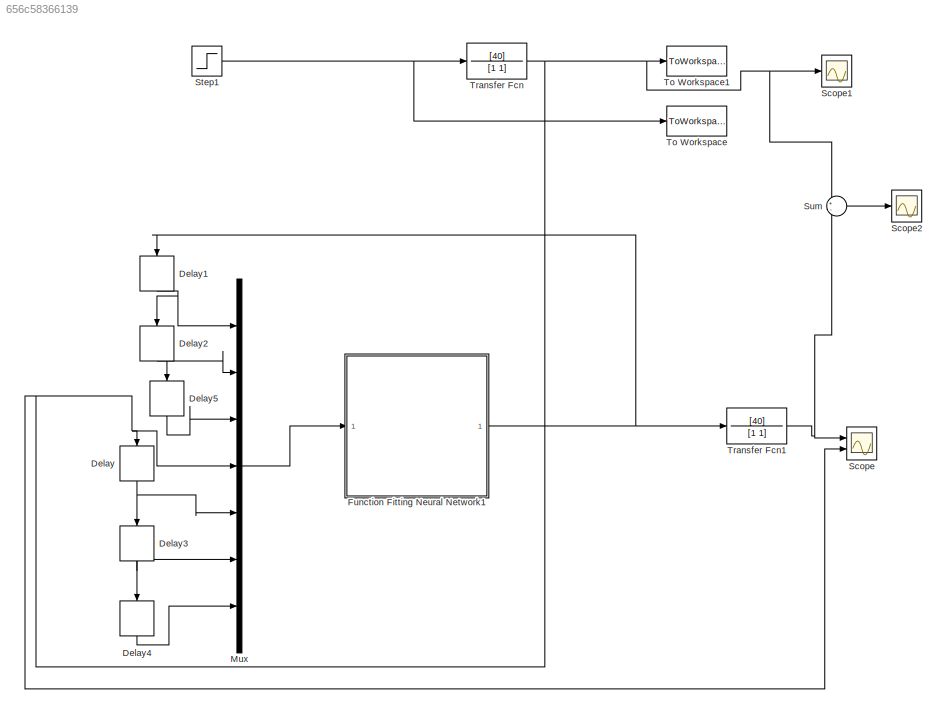
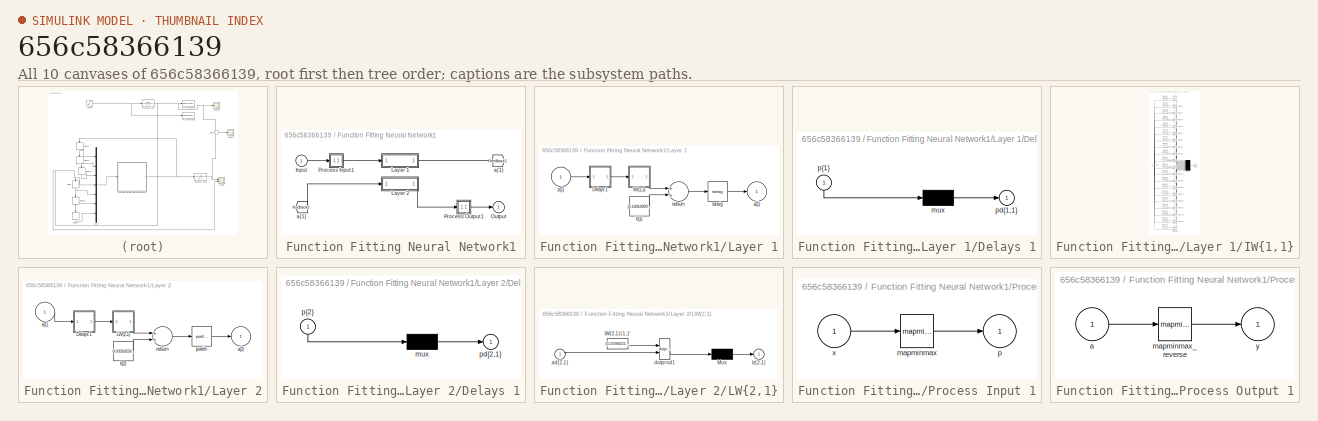
[diagram: thumbnail index - all 10 canvases of the model, root first then tree order]
MODEL slx_656c58366139
KIND model
CONFIG AbsTol = auto
CONFIG EnableMultiTasking = off
CONFIG FixedStep = 0.05
CONFIG MaxStep = auto
CONFIG MinStep = auto
CONFIG RelTol = 1e-3
CONFIG SampleTimeConstraint = Unconstrained
CONFIG Solver = FixedStepAuto
CONFIG SolverName = FixedStepAuto
CONFIG StartTime = 0.0
CONFIG StopTime = 100.0
BLOCK [Delay] Delay
  DelayLength = 1
  InputPortMap = u0
  Ports = [1, 1]
BLOCK [Delay] Delay1
  DelayLength = 1
  InputPortMap = u0
  Ports = [1, 1]
BLOCK [Delay] Delay2
  DelayLength = 1
  InputPortMap = u0
  Ports = [1, 1]
BLOCK [Delay] Delay3
  DelayLength = 1
  InputPortMap = u0
  Ports = [1, 1]
BLOCK [Delay] Delay4
  DelayLength = 1
  InputPortMap = u0
  Ports = [1, 1]
BLOCK [Delay] Delay5
  DelayLength = 1
  InputPortMap = u0
  Ports = [1, 1]
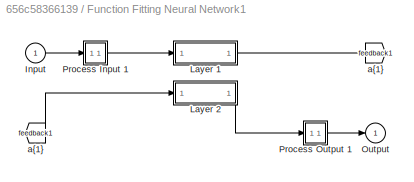
BLOCK [SubSystem] Function Fitting Neural Network1
  Ports = [1, 1]
  RequestExecContextInheritance = off
BLOCK [From] Function Fitting Neural Network1/ a{1} 
  GotoTag = feedback1
BLOCK [Inport] Function Fitting Neural Network1/Input
  IconDisplay = Port number
  PortDimensions = 7
BLOCK [SubSystem] Function Fitting Neural Network1/Layer 1
  Ports = [1, 1]
  RequestExecContextInheritance = off
BLOCK [SubSystem] Function Fitting Neural Network1/Layer 1/Delays 1
  Ports = [1, 1]
  RequestExecContextInheritance = off
BLOCK [Mux] Function Fitting Neural Network1/Layer 1/Delays 1/mux
  Inputs = 1
  Ports = [1, 1]
BLOCK [Outport] Function Fitting Neural Network1/Layer 1/Delays 1/pd{1,1}
  IconDisplay = Port number
BLOCK [Inport] Function Fitting Neural Network1/Layer 1/Delays 1/p{1}
  IconDisplay = Port number
  PortDimensions = 7
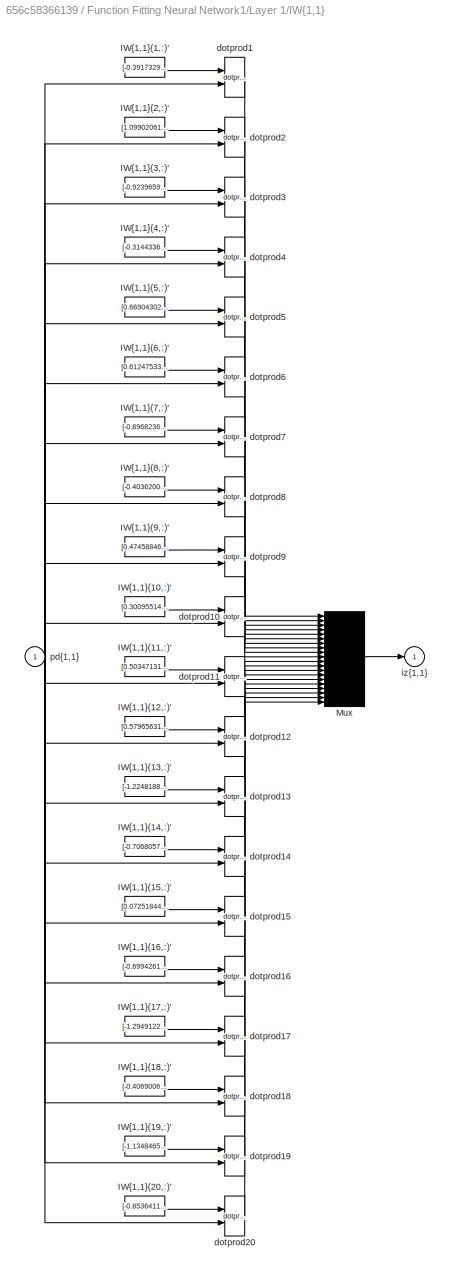
BLOCK [SubSystem] Function Fitting Neural Network1/Layer 1/IW{1,1}
  Ports = [1, 1]
  RequestExecContextInheritance = off
BLOCK [Constant] Function Fitting Neural Network1/Layer 1/IW{1,1}/IW{1,1}(1,:)'
  Value = [-0.39173291493806583485337569072726182639598846435546875;-0.459779489292541587719398421540972776710987091064453125;-0.72047176774533661092192460273508913815021514892578125;-1.3522061706078762899352341264602728188037872314453125;-0.542329398386067307313851415528915822505950927734375;-0.86022536452478981505720412314985878765583038330078125;0.9540176860017195448193660922697745263576507568359375]
BLOCK [Constant] Function Fitting Neural Network1/Layer 1/IW{1,1}/IW{1,1}(10,:)'
  Value = [0.300955147355070895542894504615105688571929931640625;-1.41501172176226308607738246791996061801910400390625;-0.94045138296618013828975790602271445095539093017578125;-1.0536496551067935367740346919163130223751068115234375;0.617778062650217396623020249535329639911651611328125;-0.15857531906934652088381199064315296709537506103515625;0.305412486953266448796995291559142060577869415283203125]
BLOCK [Constant] Function Fitting Neural Network1/Layer 1/IW{1,1}/IW{1,1}(11,:)'
  Value = [0.50347131034091763268634167616255581378936767578125;0.45851657351247376848135672844364307820796966552734375;-0.778453320363615031141080180532298982143402099609375;-0.6328181574194993164184097622637636959552764892578125;-0.94989003705725083559485710793524049222469329833984375;-1.026655688238283570257181054330430924892425537109375;1.0911696763408820221030737229739315807819366455078125]
BLOCK [Constant] Function Fitting Neural Network1/Layer 1/IW{1,1}/IW{1,1}(12,:)'
  Value = [0.5796563131620897646456569418660365045070648193359375;-0.0033458738330287285389630369536462239921092987060546875;1.042224445323579828936999547295272350311279296875;0.531488566652503546805519363260827958583831787109375;-0.49550943961307669649585250226664356887340545654296875;-0.07514794916603495522622324642725288867950439453125;1.6282623277481274026712299018981866538524627685546875]
BLOCK [Constant] Function Fitting Neural Network1/Layer 1/IW{1,1}/IW{1,1}(13,:)'
  Value = [-1.2248188278253622218727514336933381855487823486328125;-0.40492338959814666576875197279150597751140594482421875;1.152255599868130087060080768424086272716522216796875;-0.5070703414142112563922637491486966609954833984375;-0.42857906447297444696431512056733481585979461669921875;1.0918906860452037843600692212930880486965179443359375;-0.1580783630445708187739484174016979523003101348876953125]
BLOCK [Constant] Function Fitting Neural Network1/Layer 1/IW{1,1}/IW{1,1}(14,:)'
  Value = [-0.7068057606022837280335124887642450630664825439453125;1.1465524673599694072123611476854421198368072509765625;-0.5572894601633253675032619867124594748020172119140625;0.034477727324776885620138955346192233264446258544921875;-0.98621856890844827869813116194563917815685272216796875;1.0914457874059173558833890638197772204875946044921875;-0.278245670932143307485517880195402540266513824462890625]
BLOCK [Constant] Function Fitting Neural Network1/Layer 1/IW{1,1}/IW{1,1}(15,:)'
  Value = [0.072518449222534642206738908498664386570453643798828125;1.34910009274031583714759108261205255985260009765625;0.32684693723133795284496727617806755006313323974609375;0.0075702998269604297731927289305531303398311138153076171875;-0.1167250491206497375884509892784990370273590087890625;1.013569968708723845196573165594600141048431396484375;-1.3825455187907562670801553394994698464870452880859375]
BLOCK [Constant] Function Fitting Neural Network1/Layer 1/IW{1,1}/IW{1,1}(16,:)'
  Value = [-0.6994261981478164802439323466387577354907989501953125;0.0214144972209585095213046912476784200407564640045166015625;1.27755118382595522774636265239678323268890380859375;-0.188550268518292873931585518221254460513591766357421875;-0.2975196370835291315160020531038753688335418701171875;-1.226453299689593823273980888188816606998443603515625;0.92274703052015383253348090875078924000263214111328125]
BLOCK [Constant] Function Fitting Neural Network1/Layer 1/IW{1,1}/IW{1,1}(17,:)'
  Value = [-1.294912211044978445073638795292936265468597412109375;0.586838125682253686221656607813201844692230224609375;1.0537740698504507452781808751751668751239776611328125;0.098197636047543557236139122323947958648204803466796875;-0.80833042550772515877355317570618353784084320068359375;0.434481177287521003194115110090933740139007568359375;-0.74701660347629006420078212613589130342006683349609375]
BLOCK [Constant] Function Fitting Neural Network1/Layer 1/IW{1,1}/IW{1,1}(18,:)'
  Value = [-0.4069006111647361922933896494214423000812530517578125;-1.2947744231715685447881014624726958572864532470703125;-0.54555709951901965037990294149494729936122894287109375;0.170106766314345347890224502407363615930080413818359375;-0.82367814219680557386027430766262114048004150390625;-1.3168713698288156965787720764637924730777740478515625;-0.275041371383645427695086027597426436841487884521484375]
BLOCK [Constant] Function Fitting Neural Network1/Layer 1/IW{1,1}/IW{1,1}(19,:)'
  Value = [-1.134846519588295077340944772004149854183197021484375;-0.09539954603323115567281575977176544256508350372314453125;-1.26724185112409504228025980410166084766387939453125;-0.395605239491749582914081884155166335403919219970703125;-0.7530011113572410152983138686977326869964599609375;0.72913465983171310558219602171448059380054473876953125;0.84674461072009521434011958262999542057514190673828125]
BLOCK [Constant] Function Fitting Neural Network1/Layer 1/IW{1,1}/IW{1,1}(2,:)'
  Value = [1.099020611636192246152177176554687321186065673828125;0.62805307606477944748490926940576173365116119384765625;0.911740002371126845304161179228685796260833740234375;0.78746636571002393001350583290331996977329254150390625;0.9124796147068849894168351966072805225849151611328125;-0.73755617460664113504975603063940070569515228271484375;-0.401073487452224153315682997344993054866790771484375]
BLOCK [Constant] Function Fitting Neural Network1/Layer 1/IW{1,1}/IW{1,1}(20,:)'
  Value = [-0.85364119005619631952441750399884767830371856689453125;0.1595452453086071142873691997010610066354274749755859375;0.369635514592789593546484638864058069884777069091796875;0.9931171009545132211115969766979105770587921142578125;-0.99214991567828858531896685235551558434963226318359375;-1.2154723201406170129956763048539869487285614013671875;0.238947302142298756422178485081531107425689697265625]
BLOCK [Constant] Function Fitting Neural Network1/Layer 1/IW{1,1}/IW{1,1}(3,:)'
  Value = [-0.9239659228980532379438272982952184975147247314453125;0.8306531891051325278141348462668247520923614501953125;-0.9893508532221282347762780773336999118328094482421875;1.0955721177161297230640002453583292663097381591796875;-0.1774491719861603644670111634695786051452159881591796875;-0.1829839276639495249110467511854949407279491424560546875;-0.896833279184971576825091688078828155994415283203125]
BLOCK [Constant] Function Fitting Neural Network1/Layer 1/IW{1,1}/IW{1,1}(4,:)'
  Value = [-0.31443365651330879018132691271603107452392578125;0.81632479160914950266914047460886649787425994873046875;0.04111719558377725791675771915834047831594944000244140625;0.935046195047986916648596888990141451358795166015625;-0.70075648307047888607712593511678278446197509765625;-1.2185699826934290879165700971498154103755950927734375;0.9553750557978435420380947107332758605480194091796875]
BLOCK [Constant] Function Fitting Neural Network1/Layer 1/IW{1,1}/IW{1,1}(5,:)'
  Value = [0.66904302617788602436377232152153737843036651611328125;-0.8090725688364945877850686883903108537197113037109375;-1.254216260616525691062861369573511183261871337890625;-0.80467267131131869906113252000068314373493194580078125;0.52905370225486747504106688211322762072086334228515625;-0.79423273948824257839618212528876028954982757568359375;0.64383389728792861372852485146722756326198577880859375]
BLOCK [Constant] Function Fitting Neural Network1/Layer 1/IW{1,1}/IW{1,1}(6,:)'
  Value = [0.61247533767919815073099698565783910453319549560546875;0.882220974269817048707409412600100040435791015625;0.40604248405426712764665353461168706417083740234375;1.0527673176520424558333388631581328809261322021484375;-0.99029603243328534478706615118426270782947540283203125;-0.5650737173684510228355293293134309351444244384765625;-0.91278538567027622807614761768491007387638092041015625]
BLOCK [Constant] Function Fitting Neural Network1/Layer 1/IW{1,1}/IW{1,1}(7,:)'
  Value = [-0.89682366553839309997187001499696634709835052490234375;0.284272219801646908177161776620778255164623260498046875;0.0975217533500976341276356151865911670029163360595703125;-1.030960094450082298322968199499882757663726806640625;-0.98594261028073815200656326851458288729190826416015625;0.251887617986025602601074524500290863215923309326171875;1.2666892956178461560057257884182035923004150390625]
BLOCK [Constant] Function Fitting Neural Network1/Layer 1/IW{1,1}/IW{1,1}(8,:)'
  Value = [-0.4036200216692480413627208690741099417209625244140625;0.239730192588677226694926503114402294158935546875;-0.1635033099631567898857298359871492721140384674072265625;-1.2838914062576289865091894171200692653656005859375;1.1569257744217964489763517121900804340839385986328125;-1.0743826150664543828128216773620806634426116943359375;-0.4407931630505073083980960291228257119655609130859375]
BLOCK [Constant] Function Fitting Neural Network1/Layer 1/IW{1,1}/IW{1,1}(9,:)'
  Value = [0.47458846989820113737579276858014054596424102783203125;1.2967165974634442537904988057562150061130523681640625;0.95357825269679696855718020742642693221569061279296875;0.5888269199600955072781971466611139476299285888671875;0.275085244174608778422452814993448555469512939453125;-1.067780889859108128803200088441371917724609375;0.3902144050230267335876987999654375016689300537109375]
BLOCK [Mux] Function Fitting Neural Network1/Layer 1/IW{1,1}/Mux
  Inputs = 20
  Ports = [20, 1]
BLOCK [Reference] Function Fitting Neural Network1/Layer 1/IW{1,1}/dotprod1  REF=neural/Weight Functions/dotprod
  Ports = [2, 1]
  SourceBlock = neural/Weight Functions/dotprod
  SourceProductBaseCode = NN
  SourceProductName = Neural Network Toolbox
  SourceType = DOTPROD
BLOCK [Reference] Function Fitting Neural Network1/Layer 1/IW{1,1}/dotprod10  REF=neural/Weight Functions/dotprod
  Ports = [2, 1]
  SourceBlock = neural/Weight Functions/dotprod
  SourceProductBaseCode = NN
  SourceProductName = Neural Network Toolbox
  SourceType = DOTPROD
BLOCK [Reference] Function Fitting Neural Network1/Layer 1/IW{1,1}/dotprod11  REF=neural/Weight Functions/dotprod
  Ports = [2, 1]
  SourceBlock = neural/Weight Functions/dotprod
  SourceProductBaseCode = NN
  SourceProductName = Neural Network Toolbox
  SourceType = DOTPROD
BLOCK [Reference] Function Fitting Neural Network1/Layer 1/IW{1,1}/dotprod12  REF=neural/Weight Functions/dotprod
  Ports = [2, 1]
  SourceBlock = neural/Weight Functions/dotprod
  SourceProductBaseCode = NN
  SourceProductName = Neural Network Toolbox
  SourceType = DOTPROD
BLOCK [Reference] Function Fitting Neural Network1/Layer 1/IW{1,1}/dotprod13  REF=neural/Weight Functions/dotprod
  Ports = [2, 1]
  SourceBlock = neural/Weight Functions/dotprod
  SourceProductBaseCode = NN
  SourceProductName = Neural Network Toolbox
  SourceType = DOTPROD
BLOCK [Reference] Function Fitting Neural Network1/Layer 1/IW{1,1}/dotprod14  REF=neural/Weight Functions/dotprod
  Ports = [2, 1]
  SourceBlock = neural/Weight Functions/dotprod
  SourceProductBaseCode = NN
  SourceProductName = Neural Network Toolbox
  SourceType = DOTPROD
BLOCK [Reference] Function Fitting Neural Network1/Layer 1/IW{1,1}/dotprod15  REF=neural/Weight Functions/dotprod
  Ports = [2, 1]
  SourceBlock = neural/Weight Functions/dotprod
  SourceProductBaseCode = NN
  SourceProductName = Neural Network Toolbox
  SourceType = DOTPROD
BLOCK [Reference] Function Fitting Neural Network1/Layer 1/IW{1,1}/dotprod16  REF=neural/Weight Functions/dotprod
  Ports = [2, 1]
  SourceBlock = neural/Weight Functions/dotprod
  SourceProductBaseCode = NN
  SourceProductName = Neural Network Toolbox
  SourceType = DOTPROD
BLOCK [Reference] Function Fitting Neural Network1/Layer 1/IW{1,1}/dotprod17  REF=neural/Weight Functions/dotprod
  Ports = [2, 1]
  SourceBlock = neural/Weight Functions/dotprod
  SourceProductBaseCode = NN
  SourceProductName = Neural Network Toolbox
  SourceType = DOTPROD
BLOCK [Reference] Function Fitting Neural Network1/Layer 1/IW{1,1}/dotprod18  REF=neural/Weight Functions/dotprod
  Ports = [2, 1]
  SourceBlock = neural/Weight Functions/dotprod
  SourceProductBaseCode = NN
  SourceProductName = Neural Network Toolbox
  SourceType = DOTPROD
BLOCK [Reference] Function Fitting Neural Network1/Layer 1/IW{1,1}/dotprod19  REF=neural/Weight Functions/dotprod
  Ports = [2, 1]
  SourceBlock = neural/Weight Functions/dotprod
  SourceProductBaseCode = NN
  SourceProductName = Neural Network Toolbox
  SourceType = DOTPROD
BLOCK [Reference] Function Fitting Neural Network1/Layer 1/IW{1,1}/dotprod2  REF=neural/Weight Functions/dotprod
  Ports = [2, 1]
  SourceBlock = neural/Weight Functions/dotprod
  SourceProductBaseCode = NN
  SourceProductName = Neural Network Toolbox
  SourceType = DOTPROD
BLOCK [Reference] Function Fitting Neural Network1/Layer 1/IW{1,1}/dotprod20  REF=neural/Weight Functions/dotprod
  Ports = [2, 1]
  SourceBlock = neural/Weight Functions/dotprod
  SourceProductBaseCode = NN
  SourceProductName = Neural Network Toolbox
  SourceType = DOTPROD
BLOCK [Reference] Function Fitting Neural Network1/Layer 1/IW{1,1}/dotprod3  REF=neural/Weight Functions/dotprod
  Ports = [2, 1]
  SourceBlock = neural/Weight Functions/dotprod
  SourceProductBaseCode = NN
  SourceProductName = Neural Network Toolbox
  SourceType = DOTPROD
BLOCK [Reference] Function Fitting Neural Network1/Layer 1/IW{1,1}/dotprod4  REF=neural/Weight Functions/dotprod
  Ports = [2, 1]
  SourceBlock = neural/Weight Functions/dotprod
  SourceProductBaseCode = NN
  SourceProductName = Neural Network Toolbox
  SourceType = DOTPROD
BLOCK [Reference] Function Fitting Neural Network1/Layer 1/IW{1,1}/dotprod5  REF=neural/Weight Functions/dotprod
  Ports = [2, 1]
  SourceBlock = neural/Weight Functions/dotprod
  SourceProductBaseCode = NN
  SourceProductName = Neural Network Toolbox
  SourceType = DOTPROD
BLOCK [Reference] Function Fitting Neural Network1/Layer 1/IW{1,1}/dotprod6  REF=neural/Weight Functions/dotprod
  Ports = [2, 1]
  SourceBlock = neural/Weight Functions/dotprod
  SourceProductBaseCode = NN
  SourceProductName = Neural Network Toolbox
  SourceType = DOTPROD
BLOCK [Reference] Function Fitting Neural Network1/Layer 1/IW{1,1}/dotprod7  REF=neural/Weight Functions/dotprod
  Ports = [2, 1]
  SourceBlock = neural/Weight Functions/dotprod
  SourceProductBaseCode = NN
  SourceProductName = Neural Network Toolbox
  SourceType = DOTPROD
BLOCK [Reference] Function Fitting Neural Network1/Layer 1/IW{1,1}/dotprod8  REF=neural/Weight Functions/dotprod
  Ports = [2, 1]
  SourceBlock = neural/Weight Functions/dotprod
  SourceProductBaseCode = NN
  SourceProductName = Neural Network Toolbox
  SourceType = DOTPROD
BLOCK [Reference] Function Fitting Neural Network1/Layer 1/IW{1,1}/dotprod9  REF=neural/Weight Functions/dotprod
  Ports = [2, 1]
  SourceBlock = neural/Weight Functions/dotprod
  SourceProductBaseCode = NN
  SourceProductName = Neural Network Toolbox
  SourceType = DOTPROD
BLOCK [Outport] Function Fitting Neural Network1/Layer 1/IW{1,1}/iz{1,1}
  IconDisplay = Port number
BLOCK [Inport] Function Fitting Neural Network1/Layer 1/IW{1,1}/pd{1,1}
  IconDisplay = Port number
  PortDimensions = 7
BLOCK [Outport] Function Fitting Neural Network1/Layer 1/a{1}
  IconDisplay = Port number
  InitialOutput = [0;0;0;0;0;0;0;0;0;0;0;0;0;0;0;0;0;0;0;0]
BLOCK [Constant] Function Fitting Neural Network1/Layer 1/b{1}
  Value = [2.144149205803800750658183460473082959651947021484375;-1.9384652446085091082039753018761985003948211669921875;1.70504800527921762665073401876725256443023681640625;1.5119731208825768487002960682730190455913543701171875;-1.2127315436368018009005709245684556663036346435546875;-0.9885500747078868055695011207717470824718475341796875;0.80456795696780825100091760759823955595493316650390625;0.55441612308...<+717ch>
BLOCK [Sum] Function Fitting Neural Network1/Layer 1/netsum
  Inputs = 2
  Ports = [2, 1]
BLOCK [Inport] Function Fitting Neural Network1/Layer 1/p{1}
  IconDisplay = Port number
  PortDimensions = 7
BLOCK [Reference] Function Fitting Neural Network1/Layer 1/tansig  REF=neural/Transfer Functions/tansig
  Ports = [1, 1]
  SourceBlock = neural/Transfer Functions/tansig
  SourceProductBaseCode = NN
  SourceProductName = Neural Network Toolbox
  SourceType = TANSIG
BLOCK [SubSystem] Function Fitting Neural Network1/Layer 2
  Ports = [1, 1]
  RequestExecContextInheritance = off
BLOCK [SubSystem] Function Fitting Neural Network1/Layer 2/Delays 1
  Ports = [1, 1]
  RequestExecContextInheritance = off
BLOCK [Mux] Function Fitting Neural Network1/Layer 2/Delays 1/mux
  Inputs = 1
  Ports = [1, 1]
BLOCK [Outport] Function Fitting Neural Network1/Layer 2/Delays 1/pd{2,1}
  IconDisplay = Port number
BLOCK [Inport] Function Fitting Neural Network1/Layer 2/Delays 1/p{2}
  IconDisplay = Port number
  PortDimensions = 20
BLOCK [SubSystem] Function Fitting Neural Network1/Layer 2/LW{2,1}
  Ports = [1, 1]
  RequestExecContextInheritance = off
BLOCK [Constant] Function Fitting Neural Network1/Layer 2/LW{2,1}/IW{2,1}(1,:)'
  Value = [0.2339822191193517142426827604140271432697772979736328125;-0.396227366251787505024850588597473688423633575439453125;-0.389757833257051211628407827447517774999141693115234375;-0.37621823773057683215625957018346525728702545166015625;0.3151036035493584019917534533306024968624114990234375;-0.2078769728737546451657891566355829127132892608642578125;0.0517192198730683297402954679000686155632138252258300...<+741ch>
BLOCK [Mux] Function Fitting Neural Network1/Layer 2/LW{2,1}/Mux
  Inputs = 1
  Ports = [1, 1]
BLOCK [Inport] Function Fitting Neural Network1/Layer 2/LW{2,1}/ad{2,1}
  IconDisplay = Port number
  PortDimensions = 20
BLOCK [Reference] Function Fitting Neural Network1/Layer 2/LW{2,1}/dotprod1  REF=neural/Weight Functions/dotprod
  Ports = [2, 1]
  SourceBlock = neural/Weight Functions/dotprod
  SourceProductBaseCode = NN
  SourceProductName = Neural Network Toolbox
  SourceType = DOTPROD
BLOCK [Outport] Function Fitting Neural Network1/Layer 2/LW{2,1}/lz{2,1}
  IconDisplay = Port number
BLOCK [Inport] Function Fitting Neural Network1/Layer 2/a{1} 
  IconDisplay = Port number
  PortDimensions = 20
BLOCK [Outport] Function Fitting Neural Network1/Layer 2/a{2}
  IconDisplay = Port number
  InitialOutput = 0
BLOCK [Constant] Function Fitting Neural Network1/Layer 2/b{2}
  Value = -0.03316226294795089624134476480321609415113925933837890625
BLOCK [Sum] Function Fitting Neural Network1/Layer 2/netsum
  Inputs = 2
  Ports = [2, 1]
BLOCK [Reference] Function Fitting Neural Network1/Layer 2/purelin  REF=neural/Transfer Functions/purelin
  Ports = [1, 1]
  SourceBlock = neural/Transfer Functions/purelin
  SourceProductBaseCode = NN
  SourceProductName = Neural Network Toolbox
  SourceType = PURELIN
BLOCK [Outport] Function Fitting Neural Network1/Output
  IconDisplay = Port number
  InitialOutput = 0
BLOCK [SubSystem] Function Fitting Neural Network1/Process Input 1
  Ports = [1, 1]
  RequestExecContextInheritance = off
BLOCK [Reference] Function Fitting Neural Network1/Process Input 1/mapminmax  REF=neural/Processing Functions/mapminmax
  Ports = [1, 1]
  SourceBlock = neural/Processing Functions/mapminmax
  SourceProductBaseCode = NN
  SourceProductName = Neural Network Toolbox
  SourceType = MAPMINMAX Preprocess
BLOCK [Outport] Function Fitting Neural Network1/Process Input 1/p
  IconDisplay = Port number
  PortDimensions = 7
BLOCK [Inport] Function Fitting Neural Network1/Process Input 1/x
  IconDisplay = Port number
  PortDimensions = 7
BLOCK [SubSystem] Function Fitting Neural Network1/Process Output 1
  Ports = [1, 1]
  RequestExecContextInheritance = off
BLOCK [Inport] Function Fitting Neural Network1/Process Output 1/a
  IconDisplay = Port number
  PortDimensions = 1
BLOCK [Reference] Function Fitting Neural Network1/Process Output 1/mapminmax_reverse  REF=neural/Processing Functions/mapminmax_reverse
  Ports = [1, 1]
  SourceBlock = neural/Processing Functions/mapminmax_reverse
  SourceProductBaseCode = NN
  SourceProductName = Neural Network Toolbox
  SourceType = MAPMINMAX Reverse Process
BLOCK [Outport] Function Fitting Neural Network1/Process Output 1/y
  IconDisplay = Port number
  PortDimensions = 1
BLOCK [Goto] Function Fitting Neural Network1/a{1}
  GotoTag = feedback1
BLOCK [Mux] Mux
  DisplayOption = bar
  Inputs = 7
  Ports = [7, 1]
BLOCK [Scope] Scope
  Floating = off
  NumInputPorts = 2
  Ports = [2]
  ScopeSpecificationString = Simulink.scopes.TimeScopeBlockCfg('CurrentConfiguration', extmgr.ConfigurationSet(extmgr.Configuration('Core','General UI',true),extmgr.Configuration('Core','Source UI',true),extmgr.Configuration('Sources','WiredSimulink',true,'DataLoggingVariableName','ScopeData1'),extmgr.Configuration('Visuals','Time Domain',true,'SerializedDisplays',{struct('MinYLimReal','-5.06553','MaxYLimReal','45.58973','YLa...<+1418ch>
BLOCK [Scope] Scope1
  Floating = off
  NumInputPorts = 1
  Ports = [1]
  ScopeSpecificationString = Simulink.scopes.TimeScopeBlockCfg('CurrentConfiguration', extmgr.ConfigurationSet(extmgr.Configuration('Core','General UI',true),extmgr.Configuration('Core','Source UI',true),extmgr.Configuration('Sources','WiredSimulink',true,'DataLoggingVariableName','ScopeData1'),extmgr.Configuration('Visuals','Time Domain',true,'SerializedDisplays',{struct('MinYLimReal','-5.00000','MaxYLimReal','45.00000','YLa...<+1402ch>
BLOCK [Scope] Scope2
  Floating = off
  NumInputPorts = 1
  Ports = [1]
  ScopeSpecificationString = Simulink.scopes.TimeScopeBlockCfg('CurrentConfiguration', extmgr.ConfigurationSet(extmgr.Configuration('Core','General UI',true),extmgr.Configuration('Core','Source UI',true),extmgr.Configuration('Sources','WiredSimulink',true,'DataLoggingVariableName','ScopeData2'),extmgr.Configuration('Visuals','Time Domain',true,'SerializedDisplays',{struct('MinYLimReal','-44.47744','MaxYLimReal','4.94194','YLa...<+1366ch>
BLOCK [Step] Step1
  SampleTime = 0
  Time = 5
BLOCK [Sum] Sum
  IconShape = round
  InputSameDT = off
  Inputs = +-
  OutDataTypeStr = Inherit: Inherit via internal rule
  Ports = [2, 1]
  SaturateOnIntegerOverflow = off
BLOCK [ToWorkspace] To Workspace
  FixptAsFi = on
  MaxDataPoints = inf
  Ports = [1]
  SampleTime = -1
  Save2DSignal = 3-D array (concatenate along third dimension)
  VariableName = x
BLOCK [ToWorkspace] To Workspace1
  FixptAsFi = on
  MaxDataPoints = inf
  Ports = [1]
  SampleTime = -1
  Save2DSignal = 3-D array (concatenate along third dimension)
  VariableName = y
BLOCK [TransferFcn] Transfer Fcn
  Denominator = [1 1]
  Numerator = [40]
BLOCK [TransferFcn] Transfer Fcn1
  Denominator = [1 1]
  Numerator = [40]
NET Delay1:1 -> Delay2:1, Mux:1
NET Delay2:1 -> Delay5:1, Mux:2
NET Delay3:1 -> Delay4:1, Mux:6
LINE Delay4:1 -> Mux:7
LINE Delay5:1 -> Mux:3
NET Delay:1 -> Delay3:1, Mux:5
LINE Function Fitting Neural Network1/ a{1} :1 -> Function Fitting Neural Network1/Layer 2:1
LINE Function Fitting Neural Network1/Input:1 -> Function Fitting Neural Network1/Process Input 1:1
LINE Function Fitting Neural Network1/Layer 1/Delays 1/mux:1 -> Function Fitting Neural Network1/Layer 1/Delays 1/pd{1,1}:1
LINE Function Fitting Neural Network1/Layer 1/Delays 1/p{1}:1 -> Function Fitting Neural Network1/Layer 1/Delays 1/mux:1
LINE Function Fitting Neural Network1/Layer 1/Delays 1:1 -> Function Fitting Neural Network1/Layer 1/IW{1,1}:1
LINE Function Fitting Neural Network1/Layer 1/IW{1,1}/IW{1,1}(1,:)':1 -> Function Fitting Neural Network1/Layer 1/IW{1,1}/dotprod1:1
LINE Function Fitting Neural Network1/Layer 1/IW{1,1}/IW{1,1}(10,:)':1 -> Function Fitting Neural Network1/Layer 1/IW{1,1}/dotprod10:1
LINE Function Fitting Neural Network1/Layer 1/IW{1,1}/IW{1,1}(11,:)':1 -> Function Fitting Neural Network1/Layer 1/IW{1,1}/dotprod11:1
LINE Function Fitting Neural Network1/Layer 1/IW{1,1}/IW{1,1}(12,:)':1 -> Function Fitting Neural Network1/Layer 1/IW{1,1}/dotprod12:1
LINE Function Fitting Neural Network1/Layer 1/IW{1,1}/IW{1,1}(13,:)':1 -> Function Fitting Neural Network1/Layer 1/IW{1,1}/dotprod13:1
LINE Function Fitting Neural Network1/Layer 1/IW{1,1}/IW{1,1}(14,:)':1 -> Function Fitting Neural Network1/Layer 1/IW{1,1}/dotprod14:1
LINE Function Fitting Neural Network1/Layer 1/IW{1,1}/IW{1,1}(15,:)':1 -> Function Fitting Neural Network1/Layer 1/IW{1,1}/dotprod15:1
LINE Function Fitting Neural Network1/Layer 1/IW{1,1}/IW{1,1}(16,:)':1 -> Function Fitting Neural Network1/Layer 1/IW{1,1}/dotprod16:1
LINE Function Fitting Neural Network1/Layer 1/IW{1,1}/IW{1,1}(17,:)':1 -> Function Fitting Neural Network1/Layer 1/IW{1,1}/dotprod17:1
LINE Function Fitting Neural Network1/Layer 1/IW{1,1}/IW{1,1}(18,:)':1 -> Function Fitting Neural Network1/Layer 1/IW{1,1}/dotprod18:1
LINE Function Fitting Neural Network1/Layer 1/IW{1,1}/IW{1,1}(19,:)':1 -> Function Fitting Neural Network1/Layer 1/IW{1,1}/dotprod19:1
LINE Function Fitting Neural Network1/Layer 1/IW{1,1}/IW{1,1}(2,:)':1 -> Function Fitting Neural Network1/Layer 1/IW{1,1}/dotprod2:1
LINE Function Fitting Neural Network1/Layer 1/IW{1,1}/IW{1,1}(20,:)':1 -> Function Fitting Neural Network1/Layer 1/IW{1,1}/dotprod20:1
LINE Function Fitting Neural Network1/Layer 1/IW{1,1}/IW{1,1}(3,:)':1 -> Function Fitting Neural Network1/Layer 1/IW{1,1}/dotprod3:1
LINE Function Fitting Neural Network1/Layer 1/IW{1,1}/IW{1,1}(4,:)':1 -> Function Fitting Neural Network1/Layer 1/IW{1,1}/dotprod4:1
LINE Function Fitting Neural Network1/Layer 1/IW{1,1}/IW{1,1}(5,:)':1 -> Function Fitting Neural Network1/Layer 1/IW{1,1}/dotprod5:1
LINE Function Fitting Neural Network1/Layer 1/IW{1,1}/IW{1,1}(6,:)':1 -> Function Fitting Neural Network1/Layer 1/IW{1,1}/dotprod6:1
LINE Function Fitting Neural Network1/Layer 1/IW{1,1}/IW{1,1}(7,:)':1 -> Function Fitting Neural Network1/Layer 1/IW{1,1}/dotprod7:1
LINE Function Fitting Neural Network1/Layer 1/IW{1,1}/IW{1,1}(8,:)':1 -> Function Fitting Neural Network1/Layer 1/IW{1,1}/dotprod8:1
LINE Function Fitting Neural Network1/Layer 1/IW{1,1}/IW{1,1}(9,:)':1 -> Function Fitting Neural Network1/Layer 1/IW{1,1}/dotprod9:1
LINE Function Fitting Neural Network1/Layer 1/IW{1,1}/Mux:1 -> Function Fitting Neural Network1/Layer 1/IW{1,1}/iz{1,1}:1
LINE Function Fitting Neural Network1/Layer 1/IW{1,1}/dotprod10:1 -> Function Fitting Neural Network1/Layer 1/IW{1,1}/Mux:10
LINE Function Fitting Neural Network1/Layer 1/IW{1,1}/dotprod11:1 -> Function Fitting Neural Network1/Layer 1/IW{1,1}/Mux:11
LINE Function Fitting Neural Network1/Layer 1/IW{1,1}/dotprod12:1 -> Function Fitting Neural Network1/Layer 1/IW{1,1}/Mux:12
LINE Function Fitting Neural Network1/Layer 1/IW{1,1}/dotprod13:1 -> Function Fitting Neural Network1/Layer 1/IW{1,1}/Mux:13
LINE Function Fitting Neural Network1/Layer 1/IW{1,1}/dotprod14:1 -> Function Fitting Neural Network1/Layer 1/IW{1,1}/Mux:14
LINE Function Fitting Neural Network1/Layer 1/IW{1,1}/dotprod15:1 -> Function Fitting Neural Network1/Layer 1/IW{1,1}/Mux:15
LINE Function Fitting Neural Network1/Layer 1/IW{1,1}/dotprod16:1 -> Function Fitting Neural Network1/Layer 1/IW{1,1}/Mux:16
LINE Function Fitting Neural Network1/Layer 1/IW{1,1}/dotprod17:1 -> Function Fitting Neural Network1/Layer 1/IW{1,1}/Mux:17
LINE Function Fitting Neural Network1/Layer 1/IW{1,1}/dotprod18:1 -> Function Fitting Neural Network1/Layer 1/IW{1,1}/Mux:18
LINE Function Fitting Neural Network1/Layer 1/IW{1,1}/dotprod19:1 -> Function Fitting Neural Network1/Layer 1/IW{1,1}/Mux:19
LINE Function Fitting Neural Network1/Layer 1/IW{1,1}/dotprod1:1 -> Function Fitting Neural Network1/Layer 1/IW{1,1}/Mux:1
LINE Function Fitting Neural Network1/Layer 1/IW{1,1}/dotprod20:1 -> Function Fitting Neural Network1/Layer 1/IW{1,1}/Mux:20
LINE Function Fitting Neural Network1/Layer 1/IW{1,1}/dotprod2:1 -> Function Fitting Neural Network1/Layer 1/IW{1,1}/Mux:2
LINE Function Fitting Neural Network1/Layer 1/IW{1,1}/dotprod3:1 -> Function Fitting Neural Network1/Layer 1/IW{1,1}/Mux:3
LINE Function Fitting Neural Network1/Layer 1/IW{1,1}/dotprod4:1 -> Function Fitting Neural Network1/Layer 1/IW{1,1}/Mux:4
LINE Function Fitting Neural Network1/Layer 1/IW{1,1}/dotprod5:1 -> Function Fitting Neural Network1/Layer 1/IW{1,1}/Mux:5
LINE Function Fitting Neural Network1/Layer 1/IW{1,1}/dotprod6:1 -> Function Fitting Neural Network1/Layer 1/IW{1,1}/Mux:6
LINE Function Fitting Neural Network1/Layer 1/IW{1,1}/dotprod7:1 -> Function Fitting Neural Network1/Layer 1/IW{1,1}/Mux:7
LINE Function Fitting Neural Network1/Layer 1/IW{1,1}/dotprod8:1 -> Function Fitting Neural Network1/Layer 1/IW{1,1}/Mux:8
LINE Function Fitting Neural Network1/Layer 1/IW{1,1}/dotprod9:1 -> Function Fitting Neural Network1/Layer 1/IW{1,1}/Mux:9
NET Function Fitting Neural Network1/Layer 1/IW{1,1}/pd{1,1}:1 -> Function Fitting Neural Network1/Layer 1/IW{1,1}/dotprod10:2, Function Fitting Neural Network1/Layer 1/IW{1,1}/dotprod11:2, Function Fitting Neural Network1/Layer 1/IW{1,1}/dotprod12:2, Function Fitting Neural Network1/Layer 1/IW{1,1}/dotprod13:2, Function Fitting Neural Network1/Layer 1/IW{1,1}/dotprod14:2, Function Fitting Neural Network1/Layer 1/IW{1,1}/dotprod15:2, Function Fitting Neural Network1/Layer 1/IW{1,1}/dotprod16:2, Function Fitting Neural Network1/Layer 1/IW{1,1}/dotprod17:2, Function Fitting Neural Network1/Layer 1/IW{1,1}/dotprod18:2, Function Fitting Neural Network1/Layer 1/IW{1,1}/dotprod19:2, Function Fitting Neural Network1/Layer 1/IW{1,1}/dotprod1:2, Function Fitting Neural Network1/Layer 1/IW{1,1}/dotprod20:2, Function Fitting Neural Network1/Layer 1/IW{1,1}/dotprod2:2, Function Fitting Neural Network1/Layer 1/IW{1,1}/dotprod3:2, Function Fitting Neural Network1/Layer 1/IW{1,1}/dotprod4:2, Function Fitting Neural Network1/Layer 1/IW{1,1}/dotprod5:2, Function Fitting Neural Network1/Layer 1/IW{1,1}/dotprod6:2, Function Fitting Neural Network1/Layer 1/IW{1,1}/dotprod7:2, Function Fitting Neural Network1/Layer 1/IW{1,1}/dotprod8:2, Function Fitting Neural Network1/Layer 1/IW{1,1}/dotprod9:2
LINE Function Fitting Neural Network1/Layer 1/IW{1,1}:1 -> Function Fitting Neural Network1/Layer 1/netsum:1
LINE Function Fitting Neural Network1/Layer 1/b{1}:1 -> Function Fitting Neural Network1/Layer 1/netsum:2
LINE Function Fitting Neural Network1/Layer 1/netsum:1 -> Function Fitting Neural Network1/Layer 1/tansig:1
LINE Function Fitting Neural Network1/Layer 1/p{1}:1 -> Function Fitting Neural Network1/Layer 1/Delays 1:1
LINE Function Fitting Neural Network1/Layer 1/tansig:1 -> Function Fitting Neural Network1/Layer 1/a{1}:1
LINE Function Fitting Neural Network1/Layer 1:1 -> Function Fitting Neural Network1/a{1}:1
LINE Function Fitting Neural Network1/Layer 2/Delays 1/mux:1 -> Function Fitting Neural Network1/Layer 2/Delays 1/pd{2,1}:1
LINE Function Fitting Neural Network1/Layer 2/Delays 1/p{2}:1 -> Function Fitting Neural Network1/Layer 2/Delays 1/mux:1
LINE Function Fitting Neural Network1/Layer 2/Delays 1:1 -> Function Fitting Neural Network1/Layer 2/LW{2,1}:1
LINE Function Fitting Neural Network1/Layer 2/LW{2,1}/IW{2,1}(1,:)':1 -> Function Fitting Neural Network1/Layer 2/LW{2,1}/dotprod1:1
LINE Function Fitting Neural Network1/Layer 2/LW{2,1}/Mux:1 -> Function Fitting Neural Network1/Layer 2/LW{2,1}/lz{2,1}:1
LINE Function Fitting Neural Network1/Layer 2/LW{2,1}/ad{2,1}:1 -> Function Fitting Neural Network1/Layer 2/LW{2,1}/dotprod1:2
LINE Function Fitting Neural Network1/Layer 2/LW{2,1}/dotprod1:1 -> Function Fitting Neural Network1/Layer 2/LW{2,1}/Mux:1
LINE Function Fitting Neural Network1/Layer 2/LW{2,1}:1 -> Function Fitting Neural Network1/Layer 2/netsum:1
LINE Function Fitting Neural Network1/Layer 2/a{1} :1 -> Function Fitting Neural Network1/Layer 2/Delays 1:1
LINE Function Fitting Neural Network1/Layer 2/b{2}:1 -> Function Fitting Neural Network1/Layer 2/netsum:2
LINE Function Fitting Neural Network1/Layer 2/netsum:1 -> Function Fitting Neural Network1/Layer 2/purelin:1
LINE Function Fitting Neural Network1/Layer 2/purelin:1 -> Function Fitting Neural Network1/Layer 2/a{2}:1
LINE Function Fitting Neural Network1/Layer 2:1 -> Function Fitting Neural Network1/Process Output 1:1
LINE Function Fitting Neural Network1/Process Input 1/mapminmax:1 -> Function Fitting Neural Network1/Process Input 1/p:1
LINE Function Fitting Neural Network1/Process Input 1/x:1 -> Function Fitting Neural Network1/Process Input 1/mapminmax:1
LINE Function Fitting Neural Network1/Process Input 1:1 -> Function Fitting Neural Network1/Layer 1:1
LINE Function Fitting Neural Network1/Process Output 1/a:1 -> Function Fitting Neural Network1/Process Output 1/mapminmax_reverse:1
LINE Function Fitting Neural Network1/Process Output 1/mapminmax_reverse:1 -> Function Fitting Neural Network1/Process Output 1/y:1
LINE Function Fitting Neural Network1/Process Output 1:1 -> Function Fitting Neural Network1/Output:1
NET Function Fitting Neural Network1:1 -> Delay1:1, Transfer Fcn1:1
LINE Mux:1 -> Function Fitting Neural Network1:1
NET Step1:1 -> To Workspace:1, Transfer Fcn:1
LINE Sum:1 -> Scope2:1
NET Transfer Fcn1:1 -> Scope:1, Sum:2
NET Transfer Fcn:1 -> Delay:1, Mux:4, Scope1:1, Scope:2, Sum:1, To Workspace1:1
note: NET lines group one-source signal fan-out (src -> all destinations, sorted); 1:1 wires keep LINE
